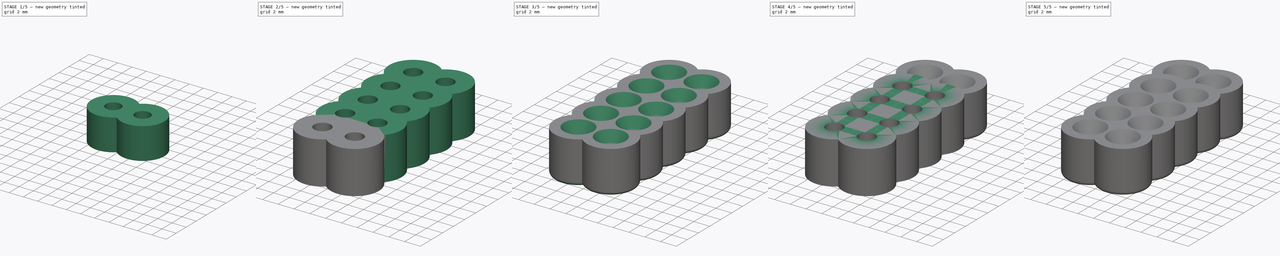
[diagram: build sequence overview — one tinted view per stage of 5, left to right]
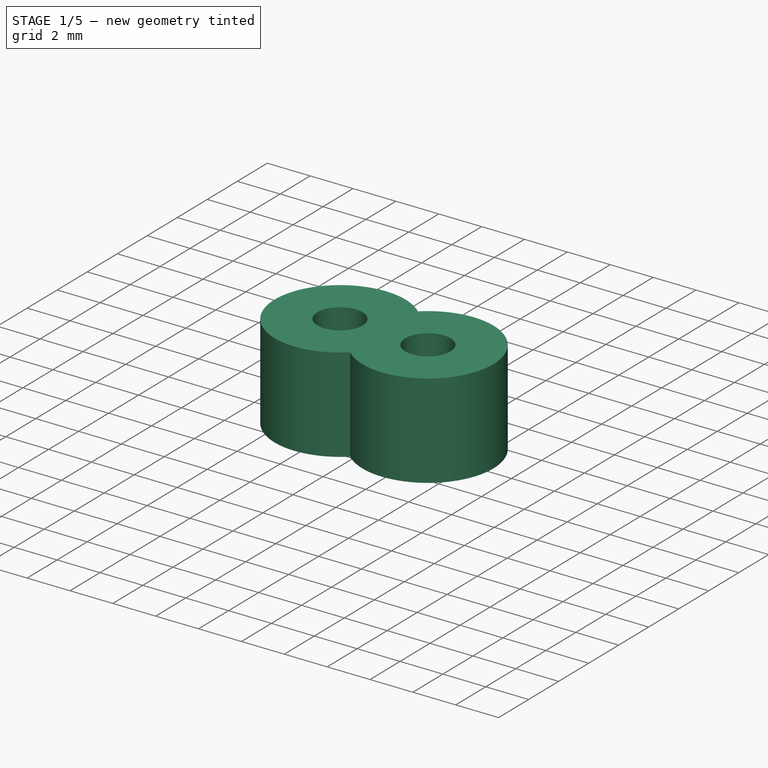
[diagram: stage 1 of 5 — iso view after this stage's code; geometry added in this stage tinted green]
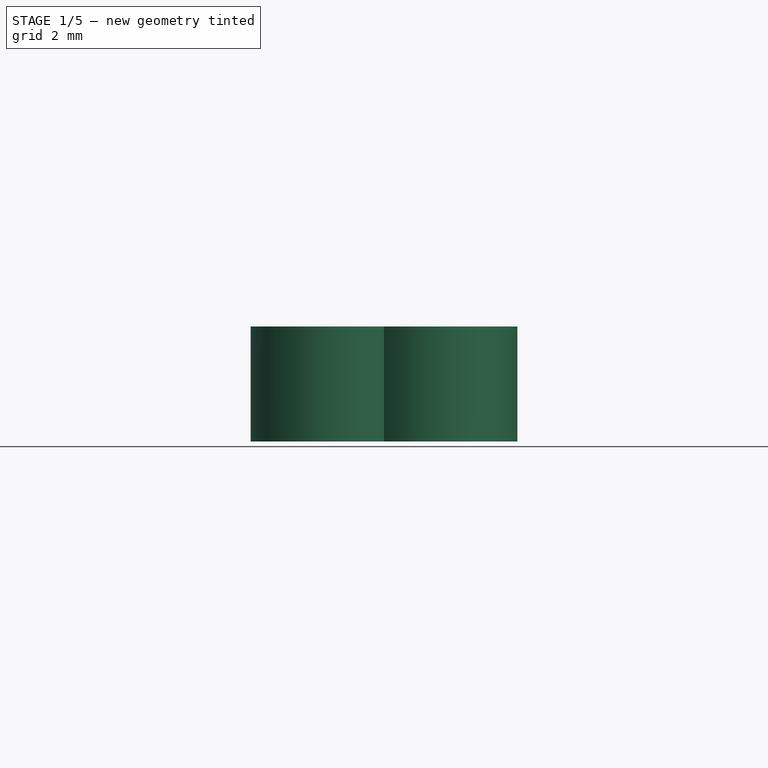
[diagram: stage 1 of 5 — front view after this stage's code; geometry added in this stage tinted green]
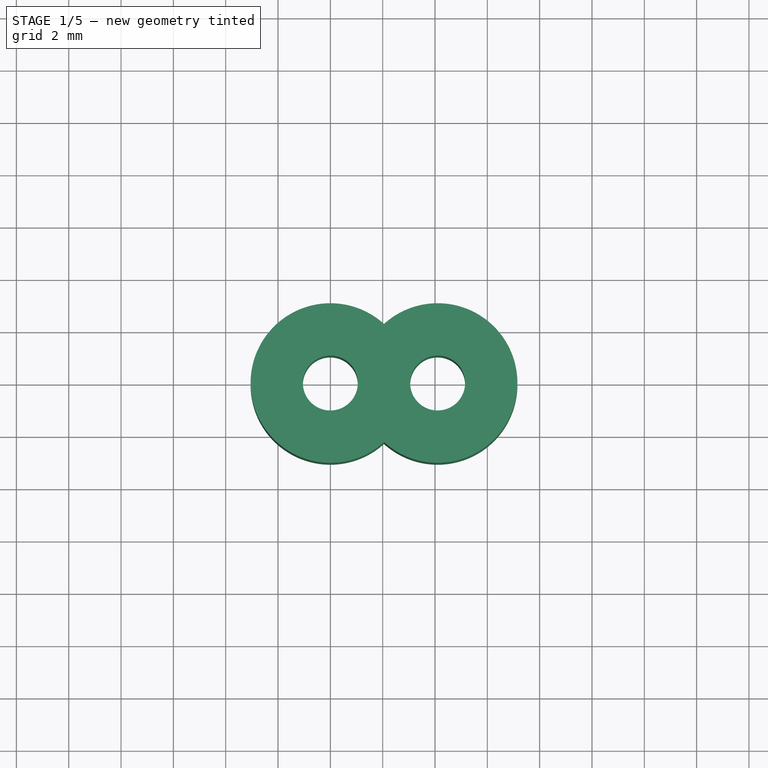
[diagram: stage 1 of 5 — top view after this stage's code; geometry added in this stage tinted green]
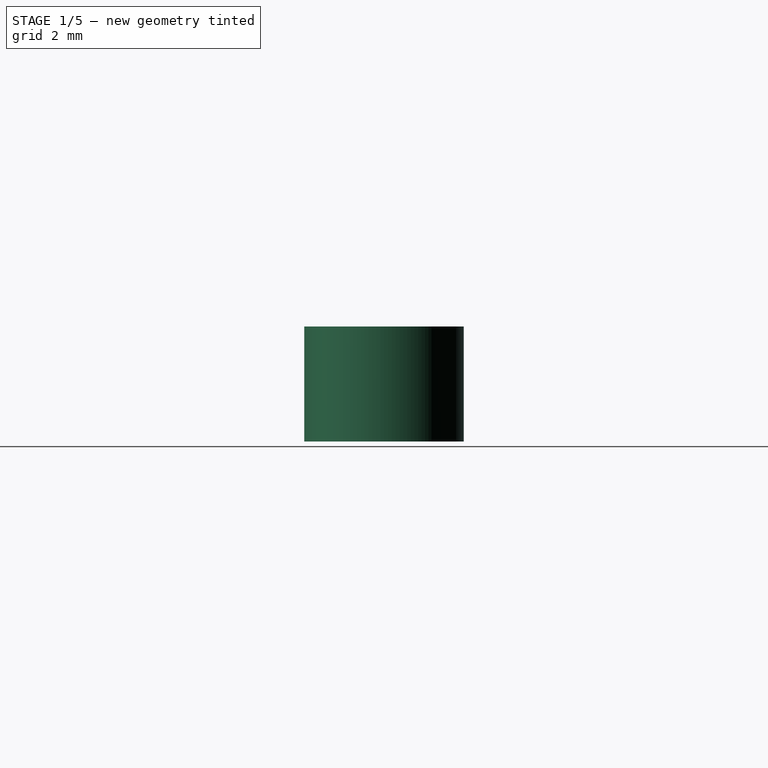
[diagram: stage 1 of 5 — right view after this stage's code; geometry added in this stage tinted green]
FCSTD DOCUMENT  (FreeCAD 0.21R33771 (Git))
Label: Screw Storage
License: All rights reserved
LicenseURL: http://en.wikipedia.org/wiki/All_rights_reserved
objects: PartDesign::Pad×5, PartDesign::LinearPattern×5, Sketcher::SketchObject×3, PartDesign::Chamfer×2, PartDesign::Fillet×2, PartDesign::Body×2, PartDesign::FeatureBase×1
note: 29 computed .brp shape members not serialized (recipe doc carries the construction recipe); baked Part::Feature solids carry a one-line shape summary decoded from their .brp

FEATURE [Sketcher::SketchObject] Sketch
  FullyConstrained = true
  MapMode = 5
  Support = -> [XY_Plane]
  sketch-geometry (3):
    g0: Circle CenterX=0 CenterY=0 CenterZ=0 NormalX=0 NormalY=0 NormalZ=1 AngleXU=0 Radius=1.05
    g1: Circle CenterX=0 CenterY=0 CenterZ=0 NormalX=0 NormalY=0 NormalZ=1 AngleXU=0 Radius=3.05
    g2: LineSegment StartX=1.05 StartY=0 StartZ=0 EndX=3.05 EndY=0 EndZ=0
  constraints (8):
    c: Coincident(g0,g-1)
    c: Diameter(g0) = 2.1
    c: Coincident(g1,g0)
    c: PointOnObject(g2,g0)
    c: PointOnObject(g2,g1)
    c: Horizontal(g2)
    c: Perpendicular(g0,g2)
    c: Distance(g2) = 2
FEATURE [PartDesign::Pad] Pad
  Direction = (0,0,1)
  Length = 4.4
  Length2 = 10
  Profile = -> Sketch
  ReferenceAxis = -> Sketch [N_Axis]
  Type = 0
FEATURE [PartDesign::LinearPattern] LinearPattern
  BaseFeature = -> Pad
  Direction = -> Sketch [H_Axis]
  Length = 4.1
  Occurrences = 2
  Originals = -> [Pad]
  Refine = true
FEATURE [PartDesign::FeatureBase] Clone
  BaseFeature = -> LinearPattern
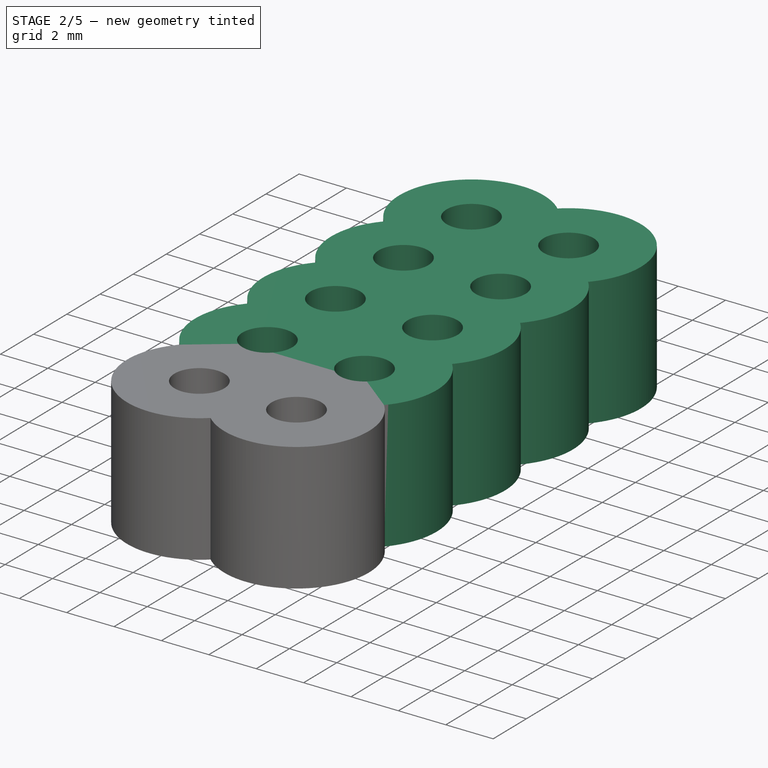
[diagram: stage 2 of 5 — iso view after this stage's code; geometry added in this stage tinted green]
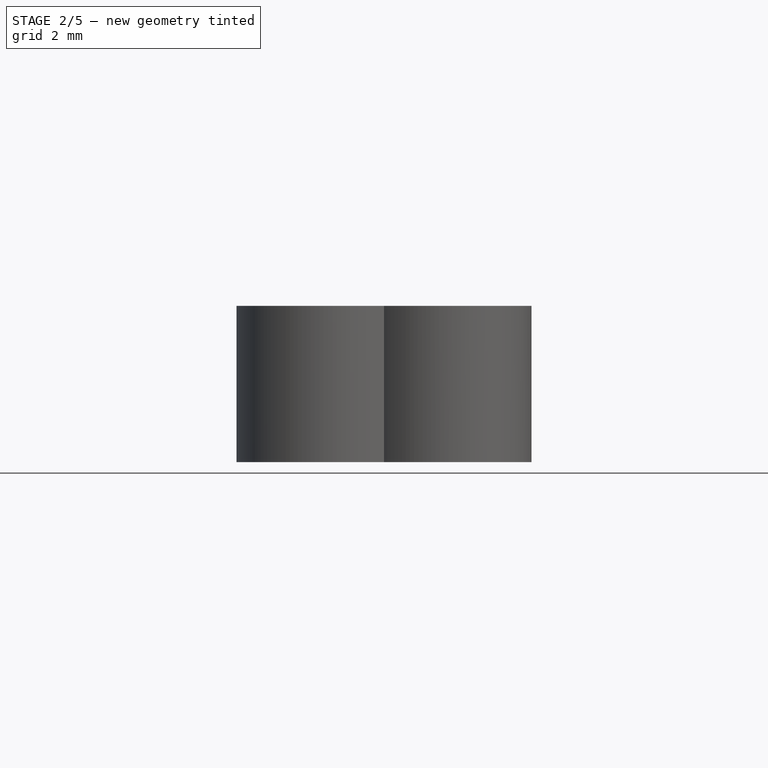
[diagram: stage 2 of 5 — front view after this stage's code; geometry added in this stage tinted green]
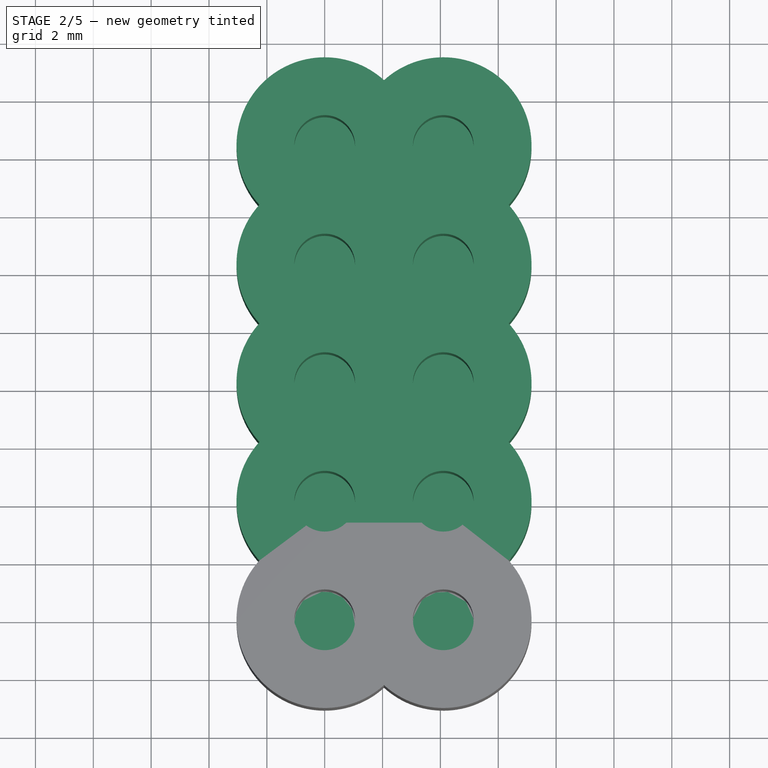
[diagram: stage 2 of 5 — top view after this stage's code; geometry added in this stage tinted green]
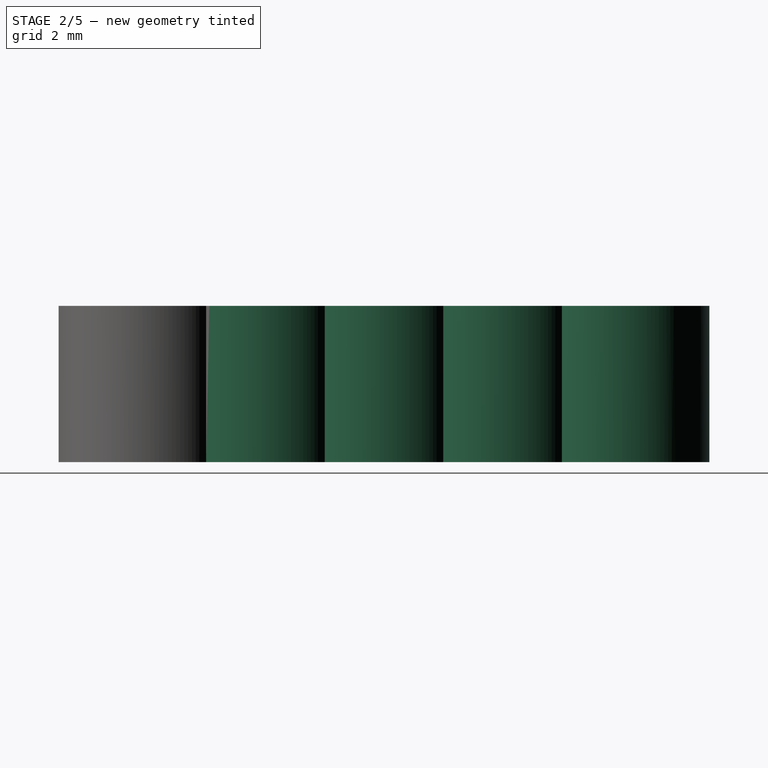
[diagram: stage 2 of 5 — right view after this stage's code; geometry added in this stage tinted green]
FEATURE [PartDesign::Pad] Pad003
  BaseFeature = -> Clone
  Direction = (0,0,1)
  Length = 10
  Length2 = 10
  Profile = -> Clone [Face4]
  Refine = true
  Type = 3
  UpToFace = -> Clone [Face2]
FEATURE [PartDesign::LinearPattern] LinearPattern002
  BaseFeature = -> Pad003
  Direction = -> Y_Axis001
  Length = 16.4
  Occurrences = 5
  Originals = -> [Pad003]
  Refine = true
FEATURE [Sketcher::SketchObject] Sketch002
  ExternalGeometry = -> [LinearPattern002]
  FullyConstrained = true
  MapMode = 5
  Placement = pos=(0,0,-1e-16) rot=(1,0,0;3.14159rad)
  Support = -> [LinearPattern002]
  sketch-geometry (10):
    g0: ArcOfCircle CenterX=4.1 CenterY=0 CenterZ=0 NormalX=0 NormalY=0 NormalZ=1 AngleXU=0 Radius=3.05 StartAngle=5.5461 EndAngle=8.59106
    g1: ArcOfCircle CenterX=4.1 CenterY=-4.1 CenterZ=0 NormalX=0 NormalY=0 NormalZ=1 AngleXU=0 Radius=3.05 StartAngle=5.5461 EndAngle=7.02027
    g2: ArcOfCircle CenterX=4.1 CenterY=-8.2 CenterZ=0 NormalX=0 NormalY=0 NormalZ=1 AngleXU=0 Radius=3.05 StartAngle=5.5461 EndAngle=7.02027
    g3: ArcOfCircle CenterX=4.1 CenterY=-12.3 CenterZ=0 NormalX=0 NormalY=0 NormalZ=1 AngleXU=0 Radius=3.05 StartAngle=5.5461 EndAngle=7.02027
    g4: ArcOfCircle CenterX=4.1 CenterY=-16.4 CenterZ=0 NormalX=0 NormalY=0 NormalZ=1 AngleXU=0 Radius=3.05 StartAngle=3.97531 EndAngle=7.02027
    g5: ArcOfCircle CenterX=1.8e-15 CenterY=-16.4 CenterZ=0 NormalX=0 NormalY=0 NormalZ=1 AngleXU=0 Radius=3.05 StartAngle=2.40451 EndAngle=5.44947
    g6: ArcOfCircle CenterX=1.4e-15 CenterY=-12.3 CenterZ=0 NormalX=0 NormalY=0 NormalZ=1 AngleXU=0 Radius=3.05 StartAngle=2.40451 EndAngle=3.87868
    g7: ArcOfCircle CenterX=9e-16 CenterY=-8.2 CenterZ=0 NormalX=0 NormalY=0 NormalZ=1 AngleXU=0 Radius=3.05 StartAngle=2.40451 EndAngle=3.87868
    g8: ArcOfCircle CenterX=5e-16 CenterY=-4.1 CenterZ=0 NormalX=0 NormalY=0 NormalZ=1 AngleXU=0 Radius=3.05 StartAngle=2.40451 EndAngle=3.87868
    g9: ArcOfCircle CenterX=0 CenterY=0 CenterZ=0 NormalX=0 NormalY=0 NormalZ=1 AngleXU=0 Radius=3.05 StartAngle=0.833713 EndAngle=3.87868
  constraints (25):
    c: Coincident(g0,g-4)
    c: Coincident(g0,g-4)
    c: Coincident(g1,g-5)
    c: Coincident(g1,g0)
    c: Coincident(g1,g-6)
    c: Coincident(g2,g-6)
    c: Coincident(g2,g1)
    c: Coincident(g3,g-7)
    c: Coincident(g3,g2)
    c: Coincident(g3,g-8)
    c: Coincident(g4,g-8)
    c: Coincident(g4,g3)
    c: Coincident(g5,g-9)
    c: Coincident(g5,g4)
    c: Coincident(g5,g-10)
    c: Coincident(g6,g-10)
    c: Coincident(g6,g5)
    c: Coincident(g7,g-11)
    c: Coincident(g7,g6)
    c: Coincident(g7,g-12)
    c: Coincident(g8,g-12)
    c: Coincident(g8,g7)
    c: Coincident(g9,g-3)
    c: Coincident(g9,g8)
    c: Coincident(g9,g0)
FEATURE [PartDesign::Pad] Pad004
  BaseFeature = -> LinearPattern002
  Direction = (0,-1e-16,-1)
  Length = 1
  Length2 = 10
  Profile = -> Sketch002
  ReferenceAxis = -> Sketch002 [N_Axis]
  Refine = true
  Type = 0
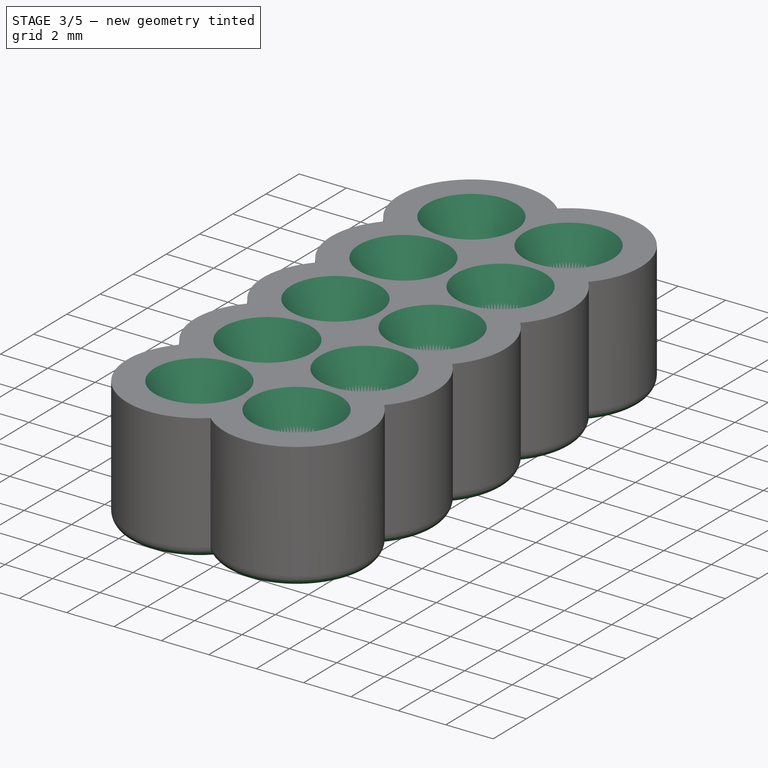
[diagram: stage 3 of 5 — iso view after this stage's code; geometry added in this stage tinted green]
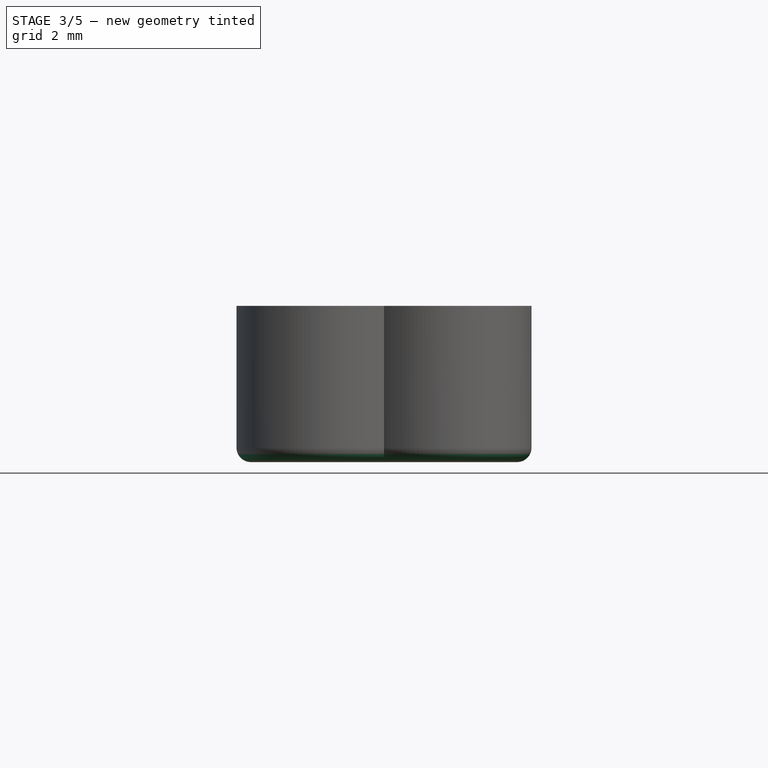
[diagram: stage 3 of 5 — front view after this stage's code; geometry added in this stage tinted green]
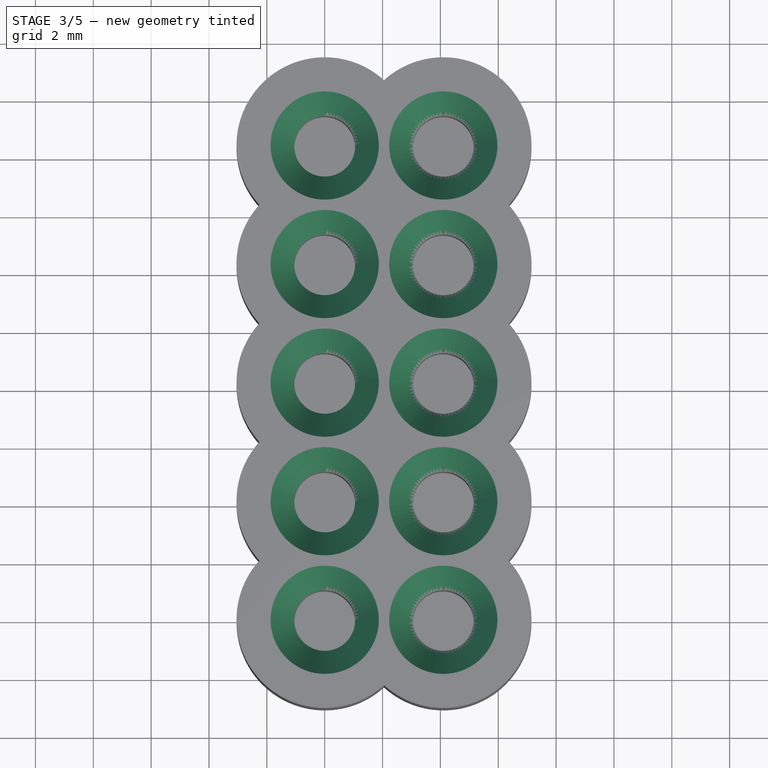
[diagram: stage 3 of 5 — top view after this stage's code; geometry added in this stage tinted green]
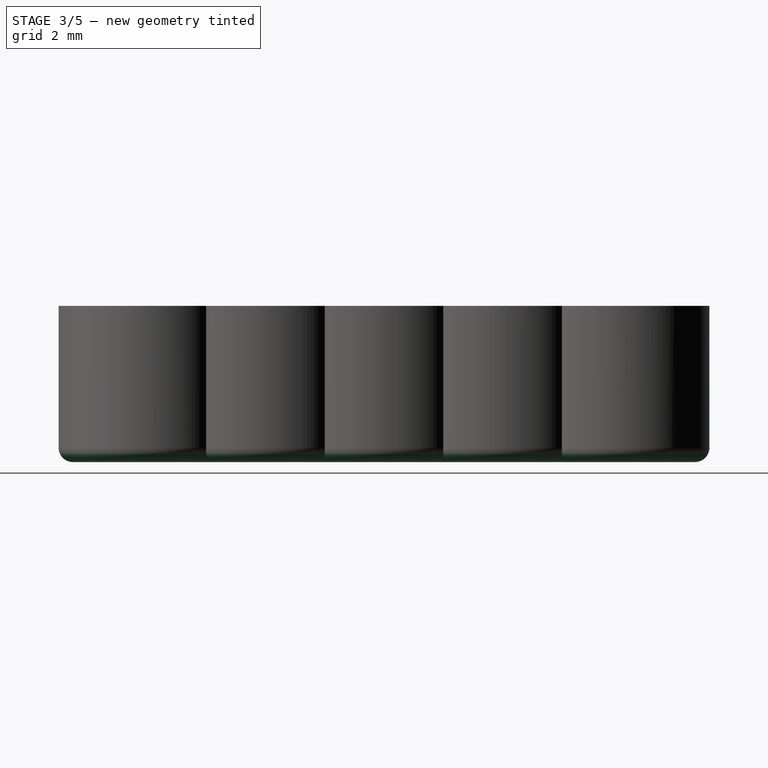
[diagram: stage 3 of 5 — right view after this stage's code; geometry added in this stage tinted green]
FEATURE [PartDesign::Chamfer] Chamfer
  Angle = 45
  Base = -> Pad004 [Edge19,Edge18]
  BaseFeature = -> Pad004
  ChamferType = 1
  FlipDirection = false
  Size = 0.82
  Size2 = 1.4
  SupportTransform = false
  UseAllEdges = false
FEATURE [PartDesign::LinearPattern] LinearPattern003
  BaseFeature = -> Chamfer
  Direction = -> Y_Axis001
  Length = 16.4
  Occurrences = 5
  Originals = -> [Chamfer]
FEATURE [PartDesign::Body] Body  label="4x"
  Group = -> [Sketch,Pad,LinearPattern,Pad001,LinearPattern001,Sketch001,Pad002,Chamfer001,LinearPattern004,Fillet]
  Origin = -> Origin
  Tip = -> Fillet
FEATURE [PartDesign::Fillet] Fillet001
  Base = -> LinearPattern003 [Edge43,Edge47,Edge52,Edge44,Edge48,Edge58,Edge60,Edge50,Edge54,Edge56]
  BaseFeature = -> LinearPattern003
  Radius = 0.5
  SupportTransform = false
  UseAllEdges = false
FEATURE [PartDesign::Body] Body001  label="5x"
  Group = -> [Clone,Pad003,LinearPattern002,Sketch002,Pad004,Chamfer,LinearPattern003,Fillet001]
  Origin = -> Origin001
  Placement = pos=(20,0,0) rot=(0,0,1;0rad)
  Tip = -> Fillet001
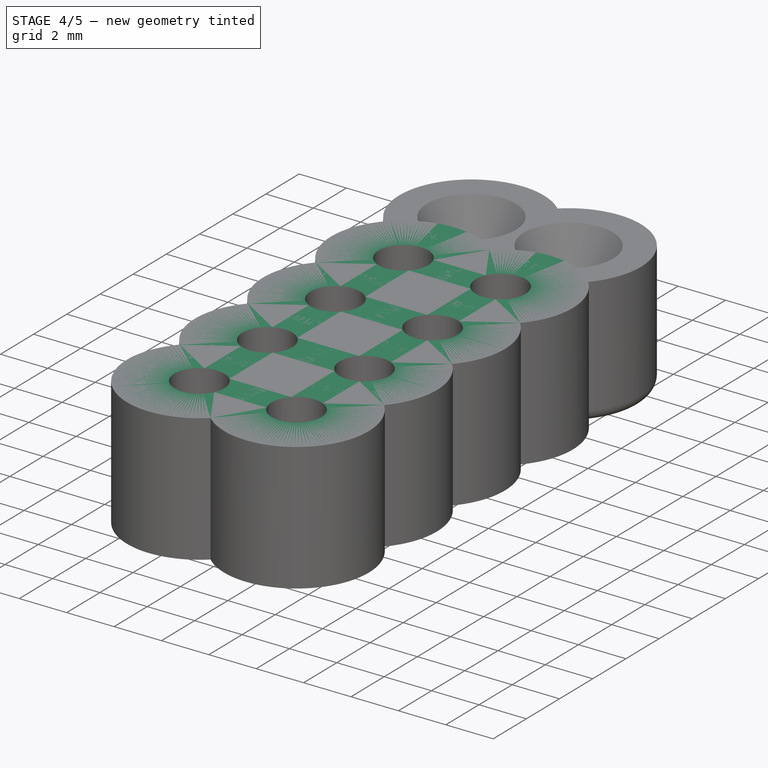
[diagram: stage 4 of 5 — iso view after this stage's code; geometry added in this stage tinted green]
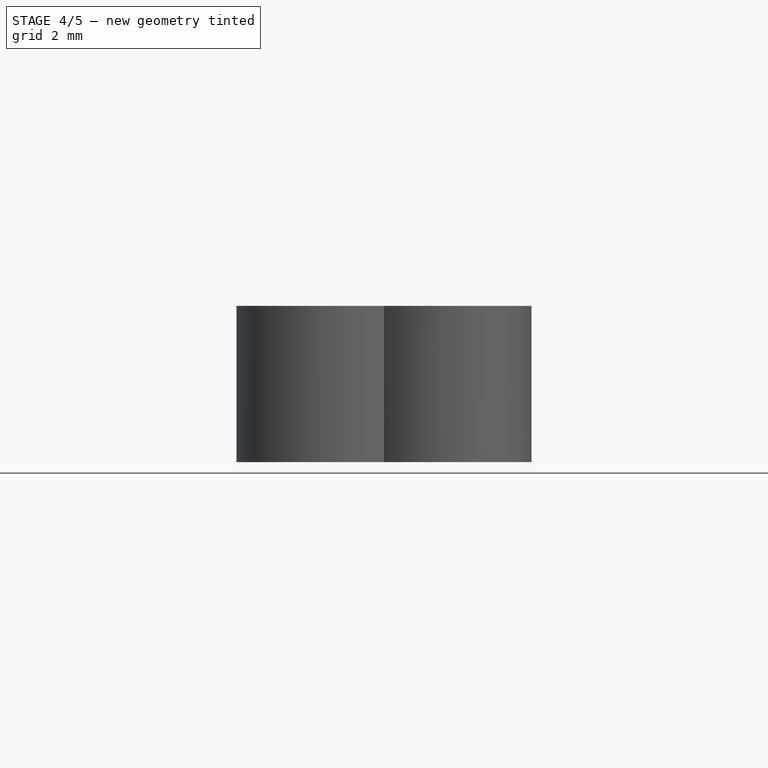
[diagram: stage 4 of 5 — front view after this stage's code; geometry added in this stage tinted green]
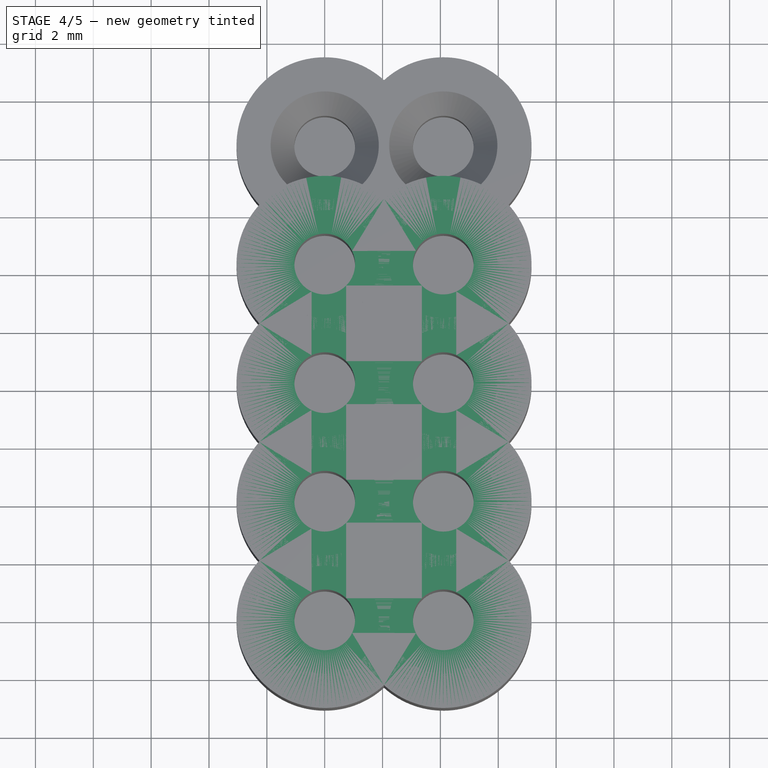
[diagram: stage 4 of 5 — top view after this stage's code; geometry added in this stage tinted green]
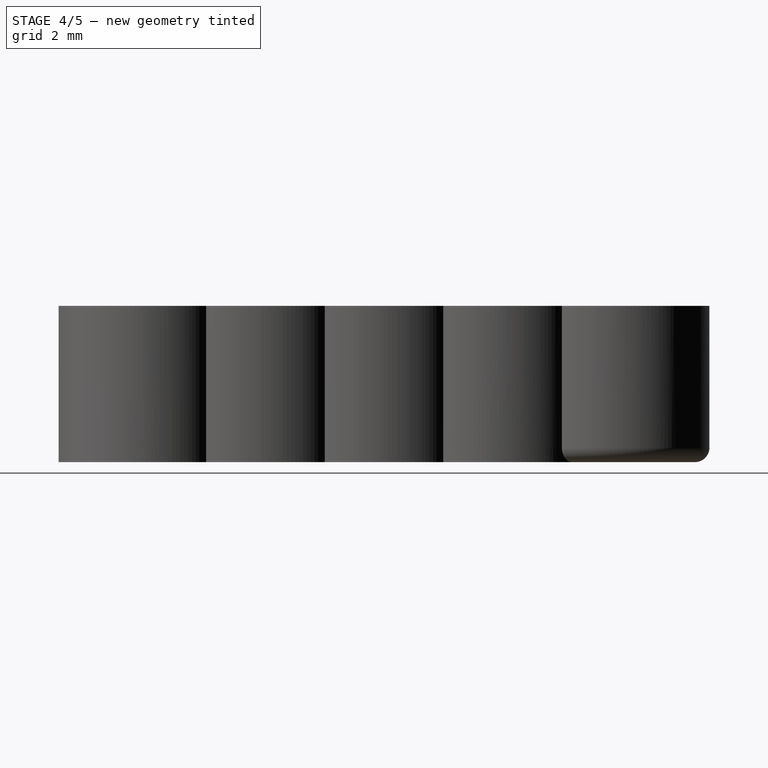
[diagram: stage 4 of 5 — right view after this stage's code; geometry added in this stage tinted green]
FEATURE [PartDesign::Pad] Pad001
  BaseFeature = -> LinearPattern
  Direction = (0,0,1)
  Length = 10
  Length2 = 10
  Profile = -> LinearPattern [Face4]
  Refine = true
  Reversed = true
  Type = 3
  UpToFace = -> LinearPattern [Face2]
FEATURE [PartDesign::LinearPattern] LinearPattern001
  BaseFeature = -> Pad001
  Direction = -> Y_Axis
  Length = 12.3
  Occurrences = 4
  Originals = -> [Pad001]
  Refine = true
FEATURE [Sketcher::SketchObject] Sketch001
  ExternalGeometry = -> [LinearPattern001]
  FullyConstrained = true
  MapMode = 5
  Placement = pos=(0,0,-1e-16) rot=(1,0,0;3.14159rad)
  Support = -> [LinearPattern001]
  sketch-geometry (8):
    g0: ArcOfCircle CenterX=0 CenterY=0 CenterZ=0 NormalX=0 NormalY=0 NormalZ=1 AngleXU=0 Radius=3.05 StartAngle=0.833713 EndAngle=3.87868
    g1: ArcOfCircle CenterX=5e-16 CenterY=-4.1 CenterZ=0 NormalX=0 NormalY=0 NormalZ=1 AngleXU=0 Radius=3.05 StartAngle=2.40451 EndAngle=3.87868
    g2: ArcOfCircle CenterX=9e-16 CenterY=-8.2 CenterZ=0 NormalX=0 NormalY=0 NormalZ=1 AngleXU=0 Radius=3.05 StartAngle=2.40451 EndAngle=3.87868
    g3: ArcOfCircle CenterX=1.4e-15 CenterY=-12.3 CenterZ=0 NormalX=0 NormalY=0 NormalZ=1 AngleXU=0 Radius=3.05 StartAngle=2.40451 EndAngle=5.44947
    g4: ArcOfCircle CenterX=4.1 CenterY=-12.3 CenterZ=0 NormalX=0 NormalY=0 NormalZ=1 AngleXU=0 Radius=3.05 StartAngle=3.97531 EndAngle=7.02027
    g5: ArcOfCircle CenterX=4.1 CenterY=-8.2 CenterZ=0 NormalX=0 NormalY=0 NormalZ=1 AngleXU=0 Radius=3.05 StartAngle=5.5461 EndAngle=7.02027
    g6: ArcOfCircle CenterX=4.1 CenterY=-4.1 CenterZ=0 NormalX=0 NormalY=0 NormalZ=1 AngleXU=0 Radius=3.05 StartAngle=5.5461 EndAngle=7.02027
    g7: ArcOfCircle CenterX=4.1 CenterY=0 CenterZ=0 NormalX=0 NormalY=0 NormalZ=1 AngleXU=0 Radius=3.05 StartAngle=5.5461 EndAngle=8.59106
  constraints (20):
    c: Coincident(g0,g-3)
    c: Coincident(g0,g-3)
    c: Coincident(g1,g-7)
    c: Coincident(g1,g0)
    c: Coincident(g1,g-7)
    c: Coincident(g2,g-6)
    c: Coincident(g2,g1)
    c: Coincident(g3,g-5)
    c: Coincident(g3,g2)
    c: Coincident(g3,g-5)
    c: Coincident(g4,g-4)
    c: Coincident(g4,g3)
    c: Coincident(g5,g-10)
    c: Coincident(g5,g4)
    c: Coincident(g5,g-8)
    c: Coincident(g6,g-8)
    c: Coincident(g6,g5)
    c: Coincident(g7,g-9)
    c: Coincident(g7,g6)
    c: Coincident(g7,g0)
FEATURE [PartDesign::Pad] Pad002
  BaseFeature = -> LinearPattern001
  Direction = (0,-1e-16,-1)
  Length = 1
  Length2 = 10
  Profile = -> Sketch001
  ReferenceAxis = -> Sketch001 [N_Axis]
  Refine = true
  Type = 0
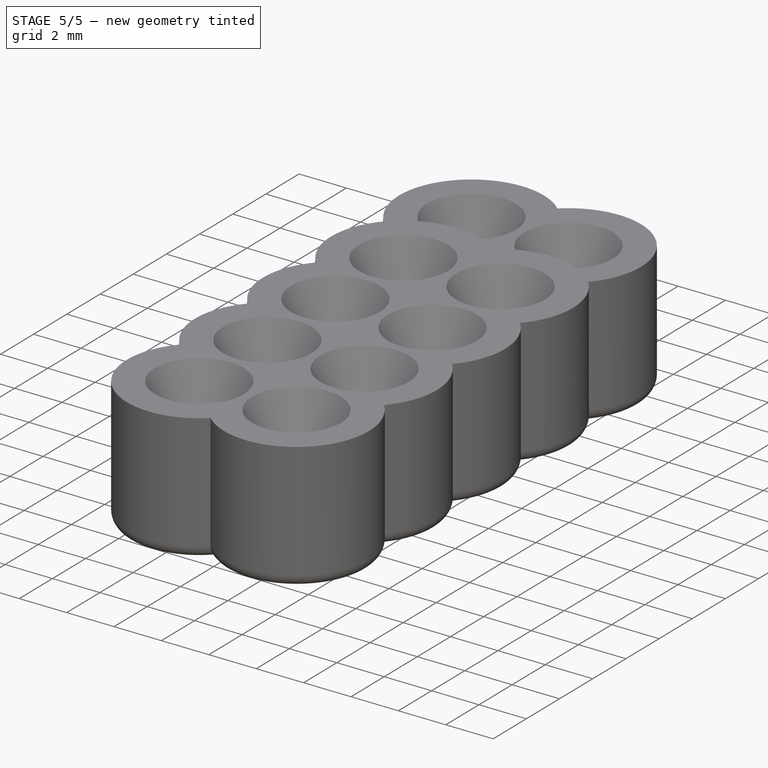
[diagram: stage 5 of 5 — iso view after this stage's code; geometry added in this stage tinted green]
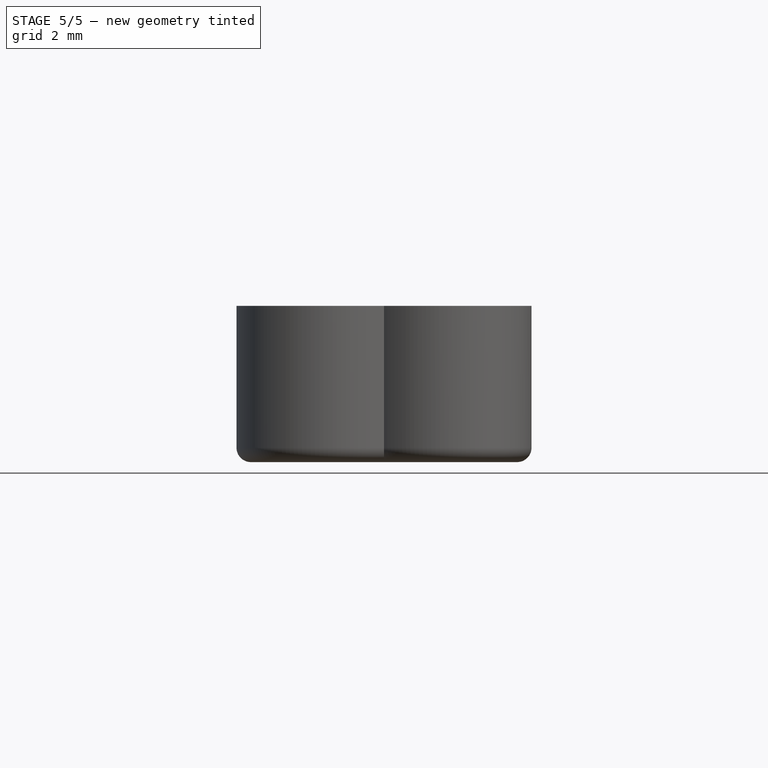
[diagram: stage 5 of 5 — front view after this stage's code; geometry added in this stage tinted green]
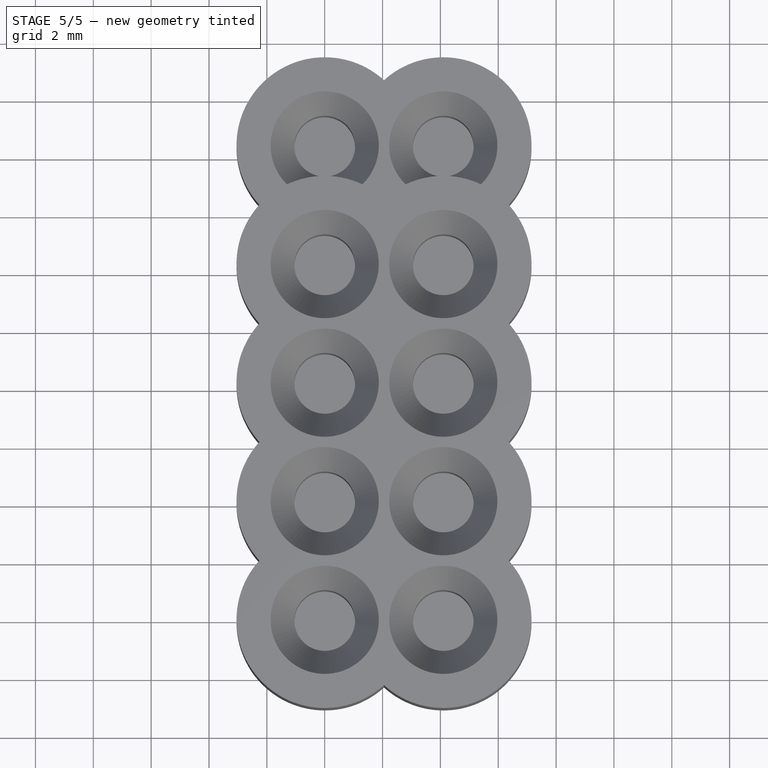
[diagram: stage 5 of 5 — top view after this stage's code; geometry added in this stage tinted green]
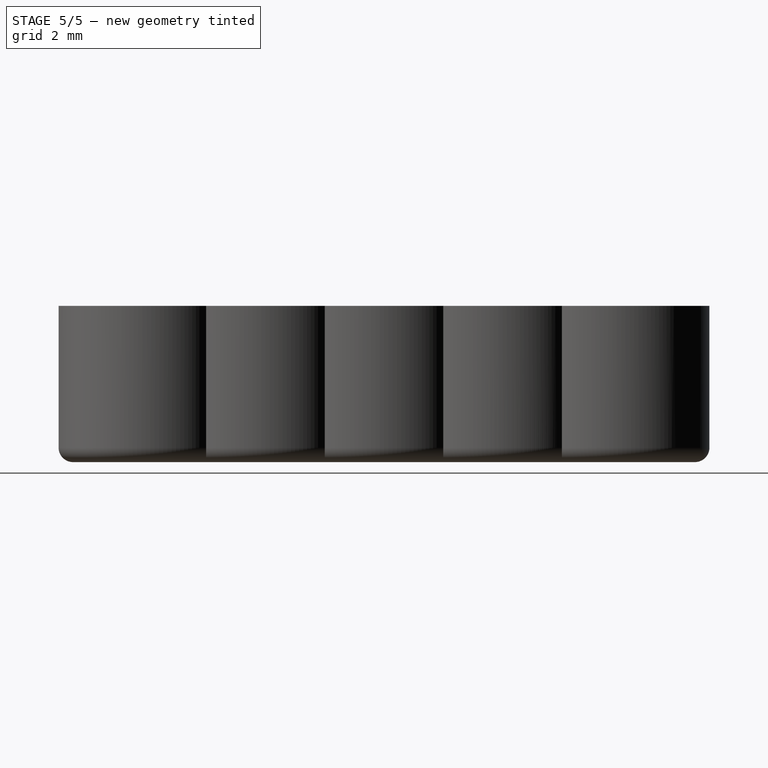
[diagram: stage 5 of 5 — right view after this stage's code; geometry added in this stage tinted green]
FEATURE [PartDesign::Chamfer] Chamfer001
  Angle = 45
  Base = -> Pad002 [Edge16,Edge13]
  BaseFeature = -> Pad002
  ChamferType = 1
  FlipDirection = false
  Size = 0.82
  Size2 = 1.4
  SupportTransform = false
  UseAllEdges = false
FEATURE [PartDesign::LinearPattern] LinearPattern004
  BaseFeature = -> Chamfer001
  Direction = -> Y_Axis
  Length = 12.3
  Occurrences = 4
  Originals = -> [Chamfer001]
FEATURE [PartDesign::Fillet] Fillet
  Base = -> LinearPattern004 [Edge39,Edge35,Edge36,Edge40,Edge42,Edge46,Edge48,Edge44]
  BaseFeature = -> LinearPattern004
  Radius = 0.5
  SupportTransform = false
  UseAllEdges = false
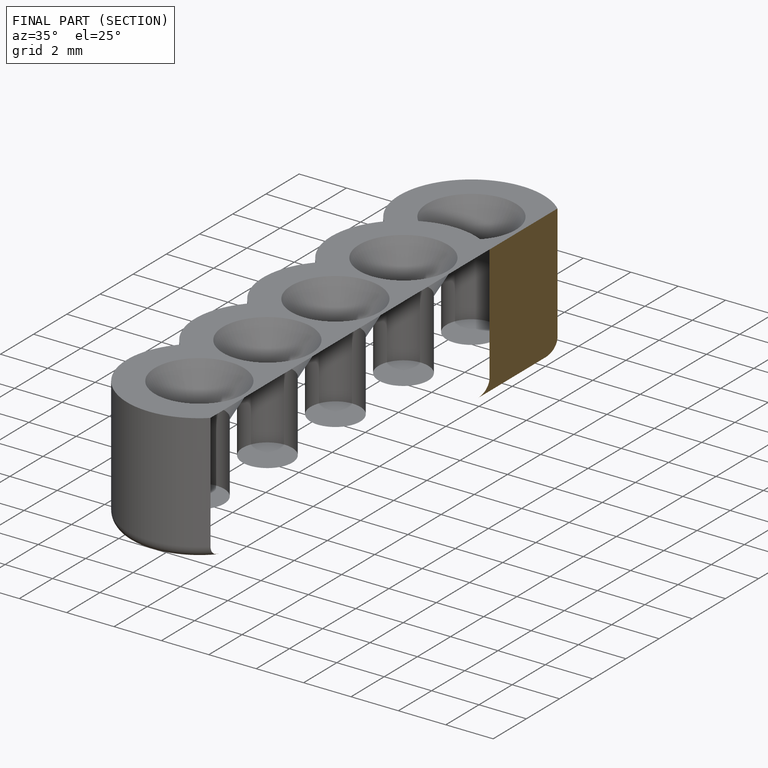
[diagram: finished part — half-section view (interior)]
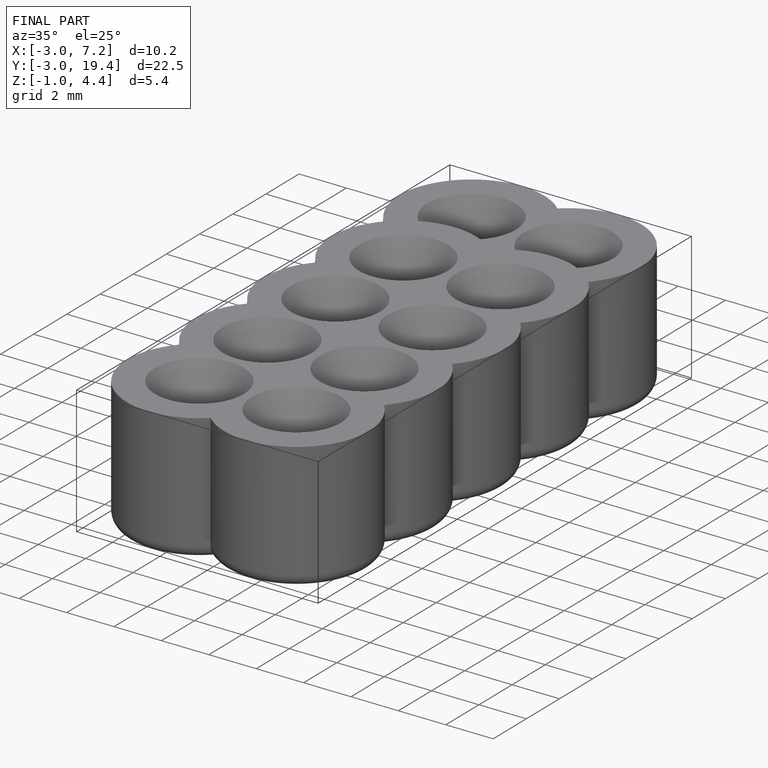
[diagram: finished part — iso view with bounding-box wireframe]
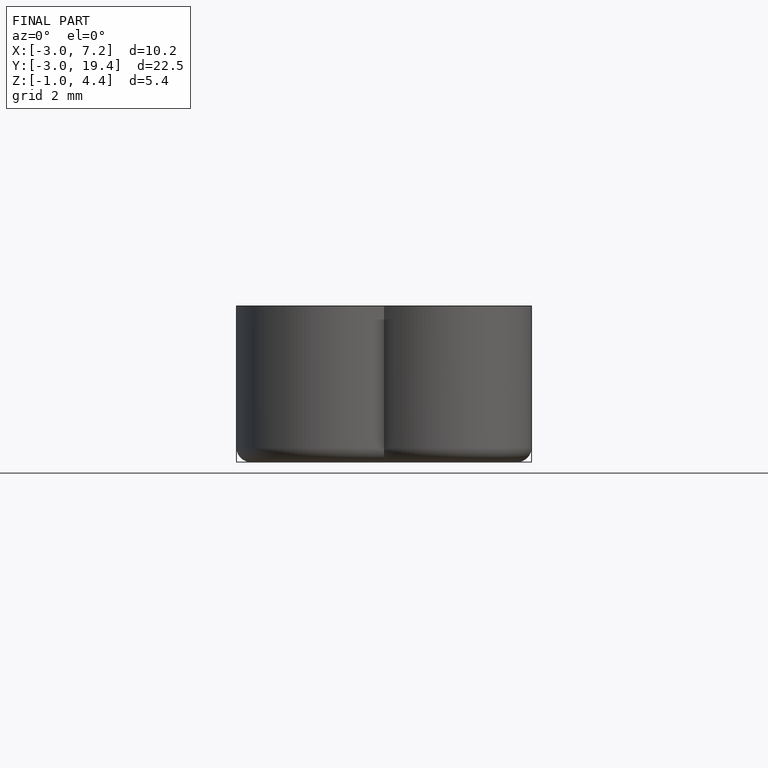
[diagram: finished part — front view with bounding-box wireframe]
